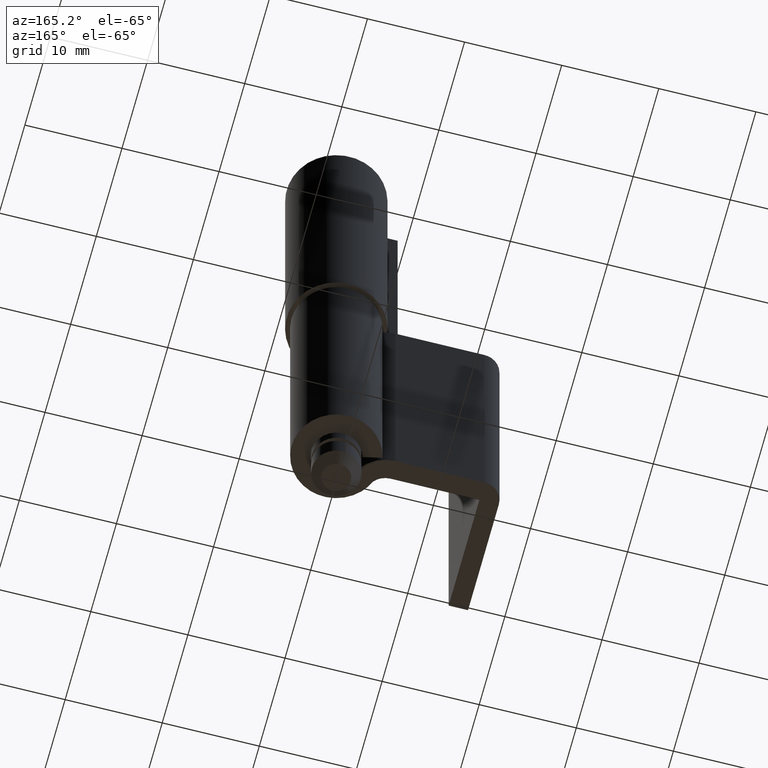
[diagram: clean part render]
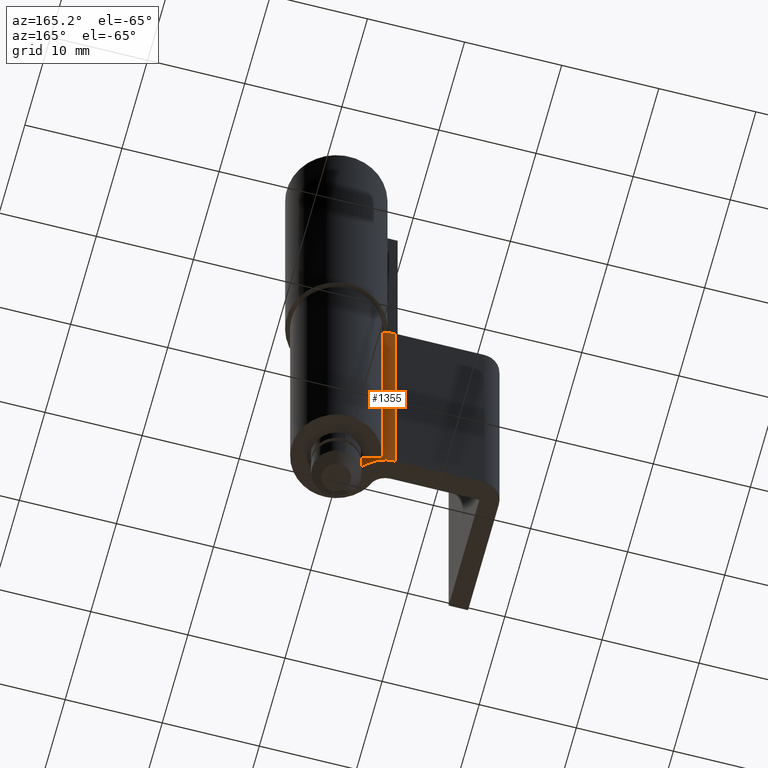
[diagram: same view with one face highlighted and labeled with its STEP entity id]
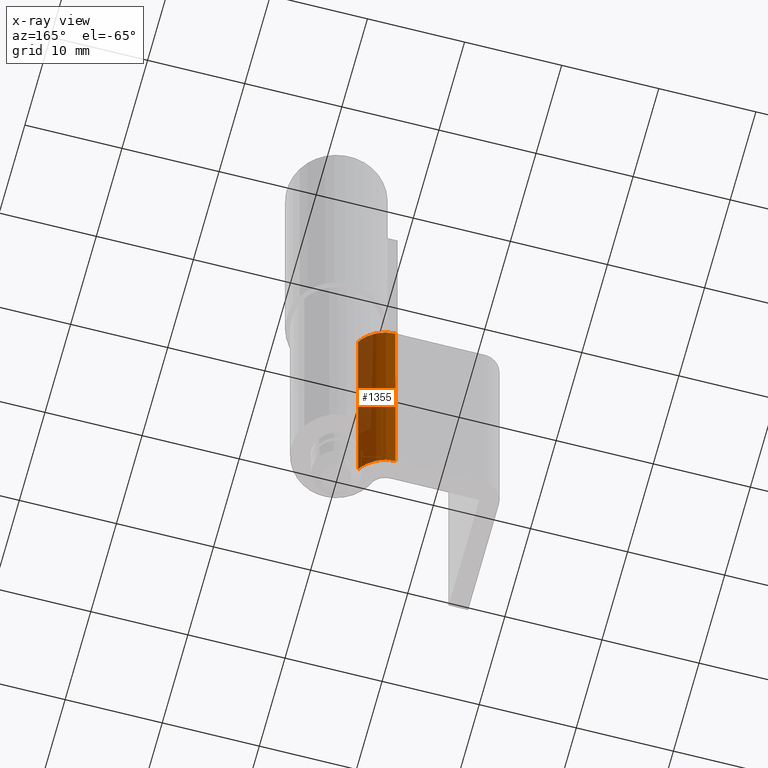
[diagram: x-ray of the same camera — body ghosted, the highlighted face saturated]
A machine part, auxiliary view. The second image highlights one B-rep face of the part: STEP entity #1355.
The next image is the same camera in x-ray: the body ghosted, the highlighted face saturated — about 28% of this face is hidden behind the body in this view.
In plain terms, the highlighted face is a freeform B-spline surface patch.
Its self-contained STEP definition (entity closure, byte-faithful):
#1030=CARTESIAN_POINT('',(-5.822586209439480,1.0,4.999999999999890));
#1031=VERTEX_POINT('',#1030);
#1037=CARTESIAN_POINT('',(-2.465684379917105,-0.824863951590083,4.999999999999890));
#1038=VERTEX_POINT('',#1037);
#1039=CARTESIAN_POINT('',(-5.822586209439482,0.999999999999995,4.999999999999890));
#1040=CARTESIAN_POINT('',(-3.648123044921103,1.000000113854605,4.999999999999890));
#1041=CARTESIAN_POINT('',(-2.465684379917105,-0.824863951590083,4.999999999999890));
#1049=(BOUNDED_CURVE()B_SPLINE_CURVE(2,(#1039,#1040,#1041),.UNSPECIFIED.,.F.,.U.)CURVE()GEOMETRIC_REPRESENTATION_ITEM()QUASI_UNIFORM_CURVE()RATIONAL_B_SPLINE_CURVE((1.0,0.878573809598411,1.0))REPRESENTATION_ITEM(''));
#1050=EDGE_CURVE('',#1031,#1038,#1049,.T.);
#1202=CARTESIAN_POINT('',(-2.465684379917105,-0.824863951590083,34.999991999999949));
#1203=VERTEX_POINT('',#1202);
#1223=CARTESIAN_POINT('',(-5.822586209439480,1.0,34.999991999999949));
#1224=VERTEX_POINT('',#1223);
#1225=CARTESIAN_POINT('',(-5.822586209439482,0.999999999999995,34.999991999999949));
#1226=CARTESIAN_POINT('',(-3.648123044921103,1.000000113854605,34.999991999999956));
#1227=CARTESIAN_POINT('',(-2.465684379917105,-0.824863951590083,34.999991999999949));
#1235=(BOUNDED_CURVE()B_SPLINE_CURVE(2,(#1225,#1226,#1227),.UNSPECIFIED.,.F.,.U.)CURVE()GEOMETRIC_REPRESENTATION_ITEM()QUASI_UNIFORM_CURVE()RATIONAL_B_SPLINE_CURVE((1.0,0.878573809598411,1.0))REPRESENTATION_ITEM(''));
#1236=EDGE_CURVE('',#1224,#1203,#1235,.T.);
#1323=CARTESIAN_POINT('',(-5.822586209439480,1.0,34.999991999999949));
#1324=CARTESIAN_POINT('',(-5.822586209439480,1.0,4.999999999999890));
#1325=QUASI_UNIFORM_CURVE('',1,(#1323,#1324),.UNSPECIFIED.,.F.,.U.);
#1326=EDGE_CURVE('',#1224,#1031,#1325,.T.);
#1331=CARTESIAN_POINT('',(-2.446831359302419,-0.854241251722661,35.749991799999961));
#1332=CARTESIAN_POINT('',(-2.446831359302419,-0.854241251722661,4.231250204999888));
#1333=CARTESIAN_POINT('',(-3.693029981147623,1.106305703661879,35.749991799999961));
#1334=CARTESIAN_POINT('',(-3.693029981147623,1.106305703661879,4.231250204999888));
#1335=CARTESIAN_POINT('',(-6.013474924988574,0.995442581031130,35.749991799999968));
#1336=CARTESIAN_POINT('',(-6.013474924988574,0.995442581031130,4.231250204999888));
#1344=(BOUNDED_SURFACE()B_SPLINE_SURFACE(1,2,((#1331,#1333,#1335),(#1332,#1334,#1336)),.UNSPECIFIED.,.F.,.F.,.U.)B_SPLINE_SURFACE_WITH_KNOTS((2,2),(3,3),(0.0,31.518741595000069),(0.0,4.309169296650466),.UNSPECIFIED.)GEOMETRIC_REPRESENTATION_ITEM()RATIONAL_B_SPLINE_SURFACE(((1.0,0.863306711010574,0.996685574714138),(1.0,0.863306711010574,0.996685574714138)))REPRESENTATION_ITEM('')SURFACE());
#1345=ORIENTED_EDGE('',*,*,#1050,.F.);
#1346=ORIENTED_EDGE('',*,*,#1326,.F.);
#1347=ORIENTED_EDGE('',*,*,#1236,.T.);
#1348=CARTESIAN_POINT('',(-2.465684379917105,-0.824863951590083,34.999991999999949));
#1349=CARTESIAN_POINT('',(-2.465684379917105,-0.824863951590083,4.999999999999890));
#1350=QUASI_UNIFORM_CURVE('',1,(#1348,#1349),.UNSPECIFIED.,.F.,.U.);
#1351=EDGE_CURVE('',#1203,#1038,#1350,.T.);
#1352=ORIENTED_EDGE('',*,*,#1351,.T.);
#1353=EDGE_LOOP('',(#1345,#1346,#1347,#1352));
#1354=FACE_OUTER_BOUND('',#1353,.T.);
#1355=ADVANCED_FACE('',(#1354),#1344,.T.);